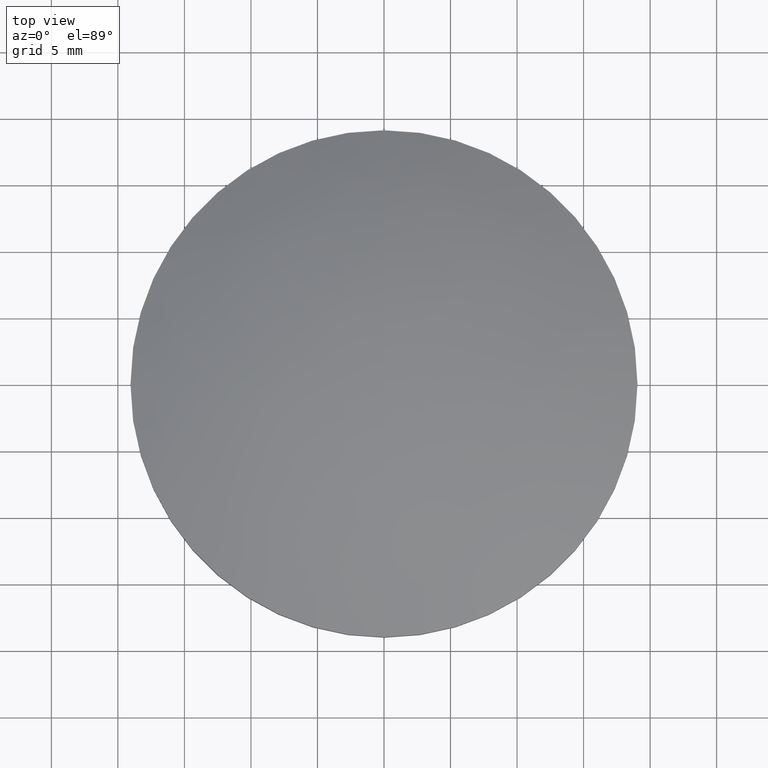
[diagram: clean part render]
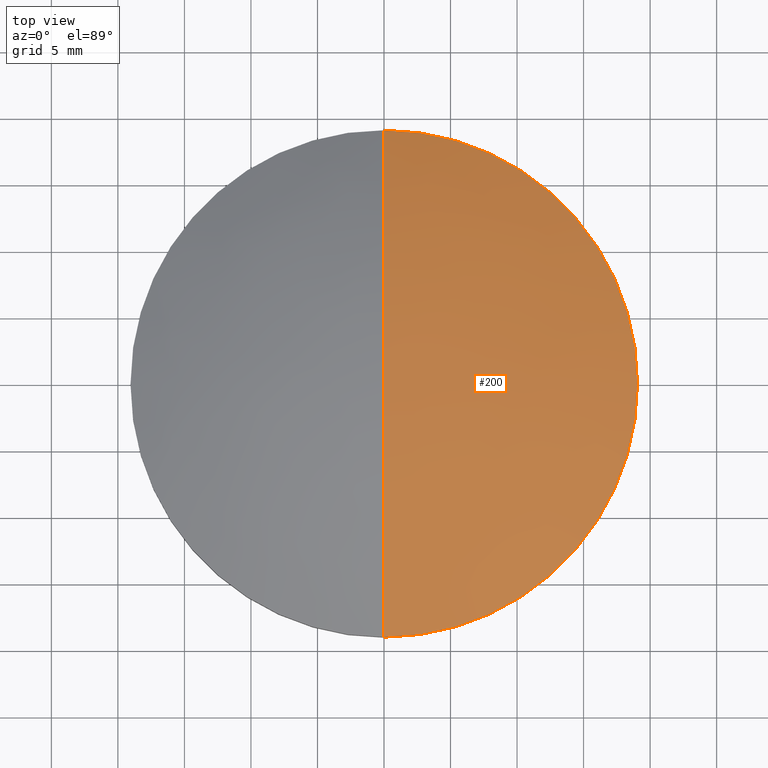
[diagram: same view with one face highlighted and labeled with its STEP entity id]
A machine part, top view. The second image highlights one B-rep face of the part: STEP entity #200.
In plain terms, the highlighted face is a freeform B-spline surface patch.
Its self-contained STEP definition (entity closure, byte-faithful):
#1 = VERTEX_POINT ( 'NONE', #118 ) ;
#2 = DIRECTION ( 'NONE',  ( 1.000000000000000000, -8.881784197001252300E-016, 0.0000000000000000000 ) ) ;
#4 = DIRECTION ( 'NONE',  ( -0.0000000000000000000, -0.0000000000000000000, -1.000000000000000000 ) ) ;
#7 = EDGE_CURVE ( 'NONE', #292, #1, #197, .T. ) ;
#10 = AXIS2_PLACEMENT_3D ( 'NONE', #148, #28, #2 ) ;
#14 = DIRECTION ( 'NONE',  ( -1.000000000000000000, 0.0000000000000000000, 3.208982423888019900E-016 ) ) ;
#28 = DIRECTION ( 'NONE',  ( -0.0000000000000000000, -0.0000000000000000000, -1.000000000000000000 ) ) ;
#35 = EDGE_CURVE ( 'NONE', #1, #219, #214, .T. ) ;
#37 = CARTESIAN_POINT ( 'NONE',  ( 11.90673879215715300, -19.26412198409376600, 5.456680184154031100 ) ) ;
#40 = AXIS2_PLACEMENT_3D ( 'NONE', #241, #14, #130 ) ;
#41 = CARTESIAN_POINT ( 'NONE',  ( 6.023337074847408000, -19.26412198409376600, 6.747483712963816800 ) ) ;
#48 =( BOUNDED_SURFACE ( )  B_SPLINE_SURFACE ( 3, 3, ( 
 ( #185, #37, #41, #82 ),
 ( #135, #57, #206, #58 ),
 ( #101, #224, #133, #80 ),
 ( #102, #289, #134, #227 ) ),
 .UNSPECIFIED., .F., .F., .F. ) 
 B_SPLINE_SURFACE_WITH_KNOTS ( ( 4, 4 ),
 ( 4, 4 ),
 ( 0.0000000000000000000, 1.000000000000000000 ),
 ( 0.0000000000000000000, 1.000000000000000000 ),
 .UNSPECIFIED. ) 
 GEOMETRIC_REPRESENTATION_ITEM ( )  RATIONAL_B_SPLINE_SURFACE ( (
 ( 1.000000000000000000, 0.9845118682220205300, 0.9845118682220205300, 1.000000000000000000),
 ( 0.9380460913893327000, 0.9235175099120761500, 0.9235175099120761500, 0.9380460913893327000),
 ( 0.9380460913893327000, 0.9235175099120761500, 0.9235175099120761500, 0.9380460913893327000),
 ( 1.000000000000000000, 0.9845118682220205300, 0.9845118682220205300, 1.000000000000000000) ) ) 
 REPRESENTATION_ITEM ( '' )  SURFACE ( )  );
#57 = CARTESIAN_POINT ( 'NONE',  ( 13.56008348748281700, -6.845478120576441200, 11.04108377331124300 ) ) ;
#58 = CARTESIAN_POINT ( 'NONE',  ( 2.775557561562891400E-014, -6.845478120576441200, 12.51112556411020000 ) ) ;
#80 = CARTESIAN_POINT ( 'NONE',  ( 2.775557561562891400E-014, 6.845478120576424400, 12.51112556411020000 ) ) ;
#82 = CARTESIAN_POINT ( 'NONE',  ( 2.428612866367529900E-014, -19.26412198409376600, 6.747483712963818500 ) ) ;
#100 = ORIENTED_EDGE ( 'NONE', *, *, #229, .F. ) ;
#101 = CARTESIAN_POINT ( 'NONE',  ( 19.78974739472200600, 6.845478120576424400, 8.169304794638435400 ) ) ;
#102 = CARTESIAN_POINT ( 'NONE',  ( 17.37683644862781000, 19.26412198409374800, 2.935049531995533200 ) ) ;
#117 = CARTESIAN_POINT ( 'NONE',  ( -4.662936703425659800E-015, -8.881784197001250400E-016, 6.846190645143179800 ) ) ;
#118 = CARTESIAN_POINT ( 'NONE',  ( 19.04999999999999700, -8.881784197001250400E-016, 6.846190645143179800 ) ) ;
#130 = DIRECTION ( 'NONE',  ( 0.0000000000000000000, -1.000000000000000000, 0.0000000000000000000 ) ) ;
#131 = CARTESIAN_POINT ( 'NONE',  ( 1.690406712932035900E-014, -19.05000000000001100, 6.846190645143182400 ) ) ;
#132 = ORIENTED_EDGE ( 'NONE', *, *, #35, .F. ) ;
#133 = CARTESIAN_POINT ( 'NONE',  ( 6.859724987162828700, 6.845478120576423500, 12.51112556411019500 ) ) ;
#134 = CARTESIAN_POINT ( 'NONE',  ( 6.023337074847408000, 19.26412198409374800, 6.747483712963816800 ) ) ;
#135 = CARTESIAN_POINT ( 'NONE',  ( 19.78974739472200600, -6.845478120576441200, 8.169304794638435400 ) ) ;
#148 = CARTESIAN_POINT ( 'NONE',  ( -4.662936703425659800E-015, -8.881784197001250400E-016, 6.846190645143179800 ) ) ;
#153 = CIRCLE ( 'NONE', #40, 45.76000000000000500 ) ;
#175 = EDGE_LOOP ( 'NONE', ( #100, #132, #182 ) ) ;
#182 = ORIENTED_EDGE ( 'NONE', *, *, #7, .F. ) ;
#185 = CARTESIAN_POINT ( 'NONE',  ( 17.37683644862781000, -19.26412198409376600, 2.935049531995533200 ) ) ;
#197 = CIRCLE ( 'NONE', #10, 19.05000000000000100 ) ;
#200 = ADVANCED_FACE ( 'NONE', ( #278 ), #48, .T. ) ;
#206 = CARTESIAN_POINT ( 'NONE',  ( 6.859724987162828700, -6.845478120576441200, 12.51112556411019500 ) ) ;
#214 = CIRCLE ( 'NONE', #252, 19.05000000000000100 ) ;
#219 = VERTEX_POINT ( 'NONE', #131 ) ;
#224 = CARTESIAN_POINT ( 'NONE',  ( 13.56008348748281700, 6.845478120576423500, 11.04108377331124300 ) ) ;
#227 = CARTESIAN_POINT ( 'NONE',  ( 2.428612866367529900E-014, 19.26412198409374800, 6.747483712963818500 ) ) ;
#229 = EDGE_CURVE ( 'NONE', #219, #292, #153, .T. ) ;
#233 = DIRECTION ( 'NONE',  ( 1.000000000000000000, 0.0000000000000000000, 0.0000000000000000000 ) ) ;
#241 = CARTESIAN_POINT ( 'NONE',  ( 3.552713678800500100E-015, -7.105427357601000300E-015, -34.75999999999999800 ) ) ;
#252 = AXIS2_PLACEMENT_3D ( 'NONE', #117, #4, #233 ) ;
#278 = FACE_OUTER_BOUND ( 'NONE', #175, .T. ) ;
#286 = CARTESIAN_POINT ( 'NONE',  ( 1.690406712932035900E-014, 19.05000000000000400, 6.846190645143182400 ) ) ;
#289 = CARTESIAN_POINT ( 'NONE',  ( 11.90673879215715300, 19.26412198409374800, 5.456680184154031100 ) ) ;
#292 = VERTEX_POINT ( 'NONE', #286 ) ;